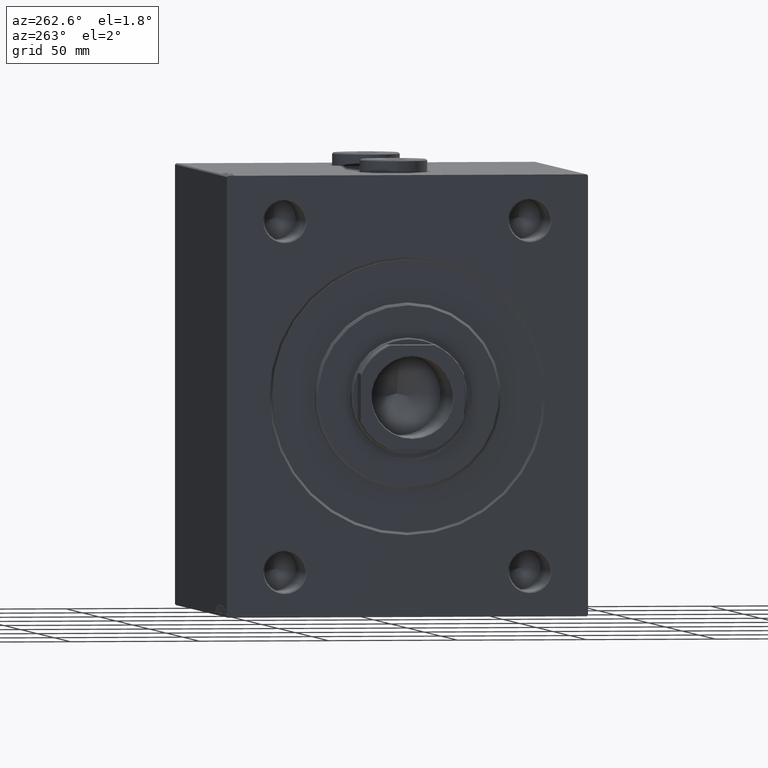
[diagram: clean part render]
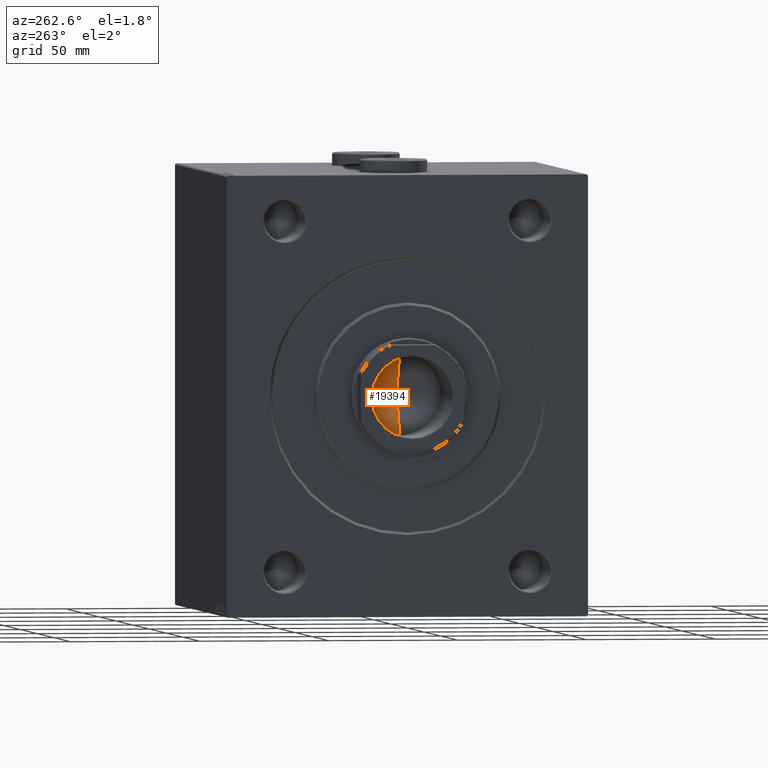
[diagram: same view with one face highlighted and labeled with its STEP entity id]
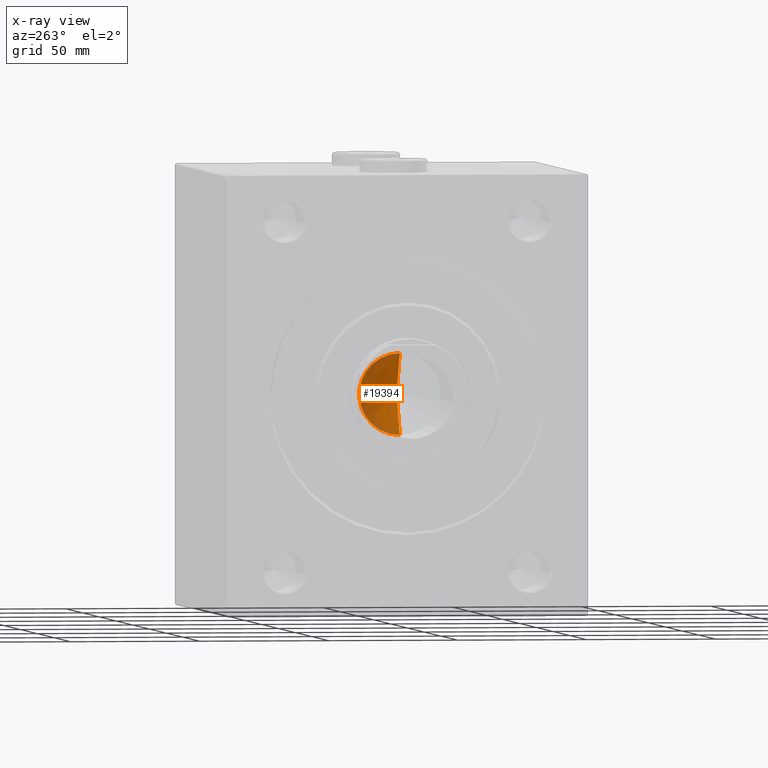
[diagram: x-ray of the same camera — body ghosted, the highlighted face saturated]
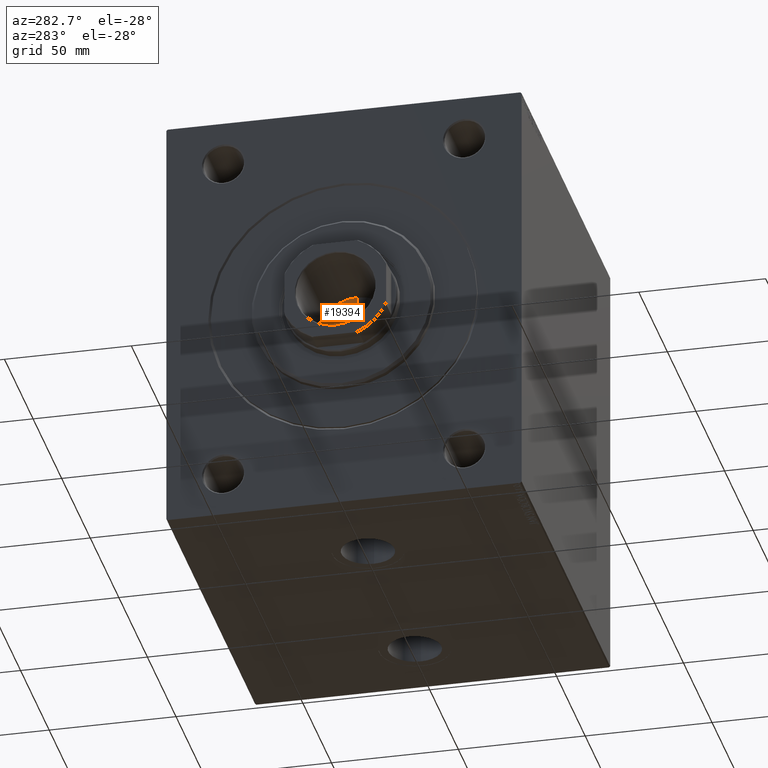
[diagram: same view with one face highlighted and labeled with its STEP entity id]
A machine part, auxiliary view. The second image highlights one B-rep face of the part: STEP entity #19394.
The next image is the same camera in x-ray: the body ghosted, the highlighted face saturated — about 41% of this face is hidden behind the body in this view.
A second angle (auxiliary view) of the same face is appended — the face is thin or edge-on in the first view.
In plain terms, the highlighted conical surface has half-angle 59 deg.
Its self-contained STEP definition (entity closure, byte-faithful):
#1658 = CARTESIAN_POINT ( 'NONE',  ( -1.199718644317817648E-14, 0.000000000000000000, 96.53644525031593560 ) ) ;
#2852 = DIRECTION ( 'NONE',  ( -0.000000000000000000, -0.000000000000000000, 1.000000000000000000 ) ) ;
#2877 = VERTEX_POINT ( 'NONE', #20070 ) ;
#3102 = AXIS2_PLACEMENT_3D ( 'NONE', #17177, #31255, #45357 ) ;
#6379 = VECTOR ( 'NONE', #28739, 1000.000000000000000 ) ;
#9384 = CONICAL_SURFACE ( 'NONE', #20472, 15.74999999999999289, 1.029744258676653867 ) ;
#11115 = ORIENTED_EDGE ( 'NONE', *, *, #29321, .F. ) ;
#12687 = CIRCLE ( 'NONE', #3102, 15.74999999999999289 ) ;
#16961 = DIRECTION ( 'NONE',  ( 1.000000000000000000, 0.000000000000000000, 0.000000000000000000 ) ) ;
#17177 = CARTESIAN_POINT ( 'NONE',  ( 0.000000000000000000, 0.000000000000000000, 106.0000000000000142 ) ) ;
#19394 = ADVANCED_FACE ( 'NONE', ( #25647 ), #9384, .F. ) ;
#20070 = CARTESIAN_POINT ( 'NONE',  ( -15.74999999999999289, 1.928818708657080556E-15, 106.0000000000000142 ) ) ;
#20472 = AXIS2_PLACEMENT_3D ( 'NONE', #34512, #2852, #16961 ) ;
#22160 = EDGE_CURVE ( 'NONE', #44849, #41469, #35448, .T. ) ;
#25647 = FACE_OUTER_BOUND ( 'NONE', #27155, .T. ) ;
#27155 = EDGE_LOOP ( 'NONE', ( #11115, #39737, #41598 ) ) ;
#28610 = CARTESIAN_POINT ( 'NONE',  ( -15.74999999999999289, 1.928818708657080556E-15, 106.0000000000000142 ) ) ;
#28739 = DIRECTION ( 'NONE',  ( 0.8571673007021120005, 0.000000000000000000, 0.5150380749100547106 ) ) ;
#29321 = EDGE_CURVE ( 'NONE', #44849, #2877, #31621, .T. ) ;
#29709 = CARTESIAN_POINT ( 'NONE',  ( 15.74999999999999289, 0.000000000000000000, 106.0000000000000142 ) ) ;
#31255 = DIRECTION ( 'NONE',  ( -0.000000000000000000, -0.000000000000000000, 1.000000000000000000 ) ) ;
#31621 = LINE ( 'NONE', #28610, #38270 ) ;
#32663 = CARTESIAN_POINT ( 'NONE',  ( 15.74999999999999289, 0.000000000000000000, 106.0000000000000142 ) ) ;
#34512 = CARTESIAN_POINT ( 'NONE',  ( 0.000000000000000000, 0.000000000000000000, 106.0000000000000142 ) ) ;
#35448 = LINE ( 'NONE', #32663, #6379 ) ;
#36233 = DIRECTION ( 'NONE',  ( -0.8571673007021120005, 1.049727191138618326E-16, 0.5150380749100547106 ) ) ;
#38270 = VECTOR ( 'NONE', #36233, 1000.000000000000000 ) ;
#39737 = ORIENTED_EDGE ( 'NONE', *, *, #22160, .T. ) ;
#41469 = VERTEX_POINT ( 'NONE', #29709 ) ;
#41598 = ORIENTED_EDGE ( 'NONE', *, *, #41984, .T. ) ;
#41984 = EDGE_CURVE ( 'NONE', #41469, #2877, #12687, .T. ) ;
#44849 = VERTEX_POINT ( 'NONE', #1658 ) ;
#45357 = DIRECTION ( 'NONE',  ( 1.000000000000000000, 0.000000000000000000, 0.000000000000000000 ) ) ;